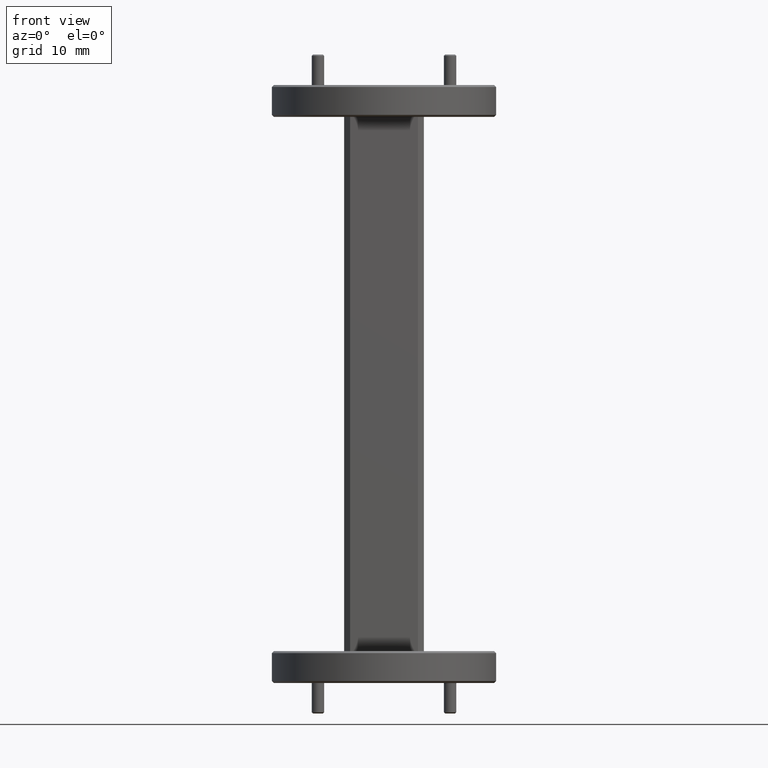
[diagram: clean part render]
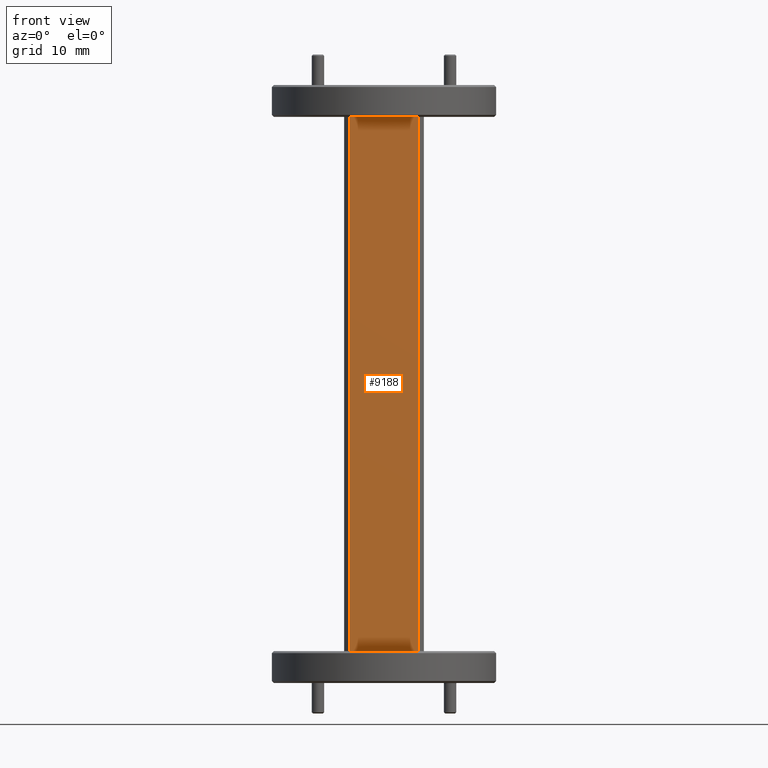
[diagram: same view with one face highlighted and labeled with its STEP entity id]
A machine part, front view. The second image highlights one B-rep face of the part: STEP entity #9188.
In plain terms, the highlighted planar face has unit normal (0, 1, 0).
Its self-contained STEP definition (entity closure, byte-faithful):
#40 = ORIENTED_EDGE ( 'NONE', *, *, #3619, .F. ) ;
#186 = PLANE ( 'NONE',  #4295 ) ;
#208 = DIRECTION ( 'NONE',  ( 0.000000000000000000, 0.000000000000000000, -1.000000000000000000 ) ) ;
#303 = VECTOR ( 'NONE', #6482, 39.37007874015748143 ) ;
#335 = CARTESIAN_POINT ( 'NONE',  ( 0.1699999999999999845, -0.2000000000000000111, -1.340000000000000080 ) ) ;
#424 = CARTESIAN_POINT ( 'NONE',  ( -0.2000000000000000111, -0.2000000000000000111, 1.340000000000000080 ) ) ;
#572 = VECTOR ( 'NONE', #8587, 39.37007874015748143 ) ;
#680 = CARTESIAN_POINT ( 'NONE',  ( -0.1700000000000000677, -0.2000000000000000111, -1.340000000000000080 ) ) ;
#1653 = CARTESIAN_POINT ( 'NONE',  ( 0.1699999999999999845, -0.2000000000000000111, 1.500000000000000222 ) ) ;
#1815 = FACE_OUTER_BOUND ( 'NONE', #3842, .T. ) ;
#2470 = CARTESIAN_POINT ( 'NONE',  ( 0.1699999999999999845, -0.2000000000000000111, 1.340000000000000080 ) ) ;
#2480 = CARTESIAN_POINT ( 'NONE',  ( -0.2000000000000000111, -0.2000000000000000111, 1.500000000000000222 ) ) ;
#2593 = DIRECTION ( 'NONE',  ( 0.000000000000000000, -0.000000000000000000, 1.000000000000000000 ) ) ;
#2928 = VERTEX_POINT ( 'NONE', #680 ) ;
#3163 = VERTEX_POINT ( 'NONE', #8492 ) ;
#3531 = EDGE_CURVE ( 'NONE', #7572, #4662, #8529, .T. ) ;
#3619 = EDGE_CURVE ( 'NONE', #7572, #2928, #5533, .T. ) ;
#3842 = EDGE_LOOP ( 'NONE', ( #7213, #6047, #40, #7938 ) ) ;
#4295 = AXIS2_PLACEMENT_3D ( 'NONE', #2480, #8600, #2593 ) ;
#4662 = VERTEX_POINT ( 'NONE', #2470 ) ;
#4718 = DIRECTION ( 'NONE',  ( 0.000000000000000000, 0.000000000000000000, 1.000000000000000000 ) ) ;
#5533 = LINE ( 'NONE', #7119, #572 ) ;
#5764 = CARTESIAN_POINT ( 'NONE',  ( -0.1700000000000000677, -0.2000000000000000111, 1.500000000000000222 ) ) ;
#6047 = ORIENTED_EDGE ( 'NONE', *, *, #8486, .T. ) ;
#6482 = DIRECTION ( 'NONE',  ( 1.000000000000000000, 0.000000000000000000, 0.000000000000000000 ) ) ;
#6626 = LINE ( 'NONE', #424, #303 ) ;
#7119 = CARTESIAN_POINT ( 'NONE',  ( -0.2000000000000000111, -0.2000000000000000111, -1.340000000000000080 ) ) ;
#7213 = ORIENTED_EDGE ( 'NONE', *, *, #9435, .F. ) ;
#7572 = VERTEX_POINT ( 'NONE', #335 ) ;
#7642 = VECTOR ( 'NONE', #208, 39.37007874015748143 ) ;
#7938 = ORIENTED_EDGE ( 'NONE', *, *, #3531, .T. ) ;
#8259 = VECTOR ( 'NONE', #4718, 39.37007874015748143 ) ;
#8486 = EDGE_CURVE ( 'NONE', #3163, #2928, #9564, .T. ) ;
#8492 = CARTESIAN_POINT ( 'NONE',  ( -0.1700000000000000677, -0.2000000000000000111, 1.340000000000000080 ) ) ;
#8529 = LINE ( 'NONE', #1653, #8259 ) ;
#8587 = DIRECTION ( 'NONE',  ( -1.000000000000000000, 0.000000000000000000, 0.000000000000000000 ) ) ;
#8600 = DIRECTION ( 'NONE',  ( 0.000000000000000000, 1.000000000000000000, 0.000000000000000000 ) ) ;
#9188 = ADVANCED_FACE ( 'NONE', ( #1815 ), #186, .F. ) ;
#9435 = EDGE_CURVE ( 'NONE', #3163, #4662, #6626, .T. ) ;
#9564 = LINE ( 'NONE', #5764, #7642 ) ;